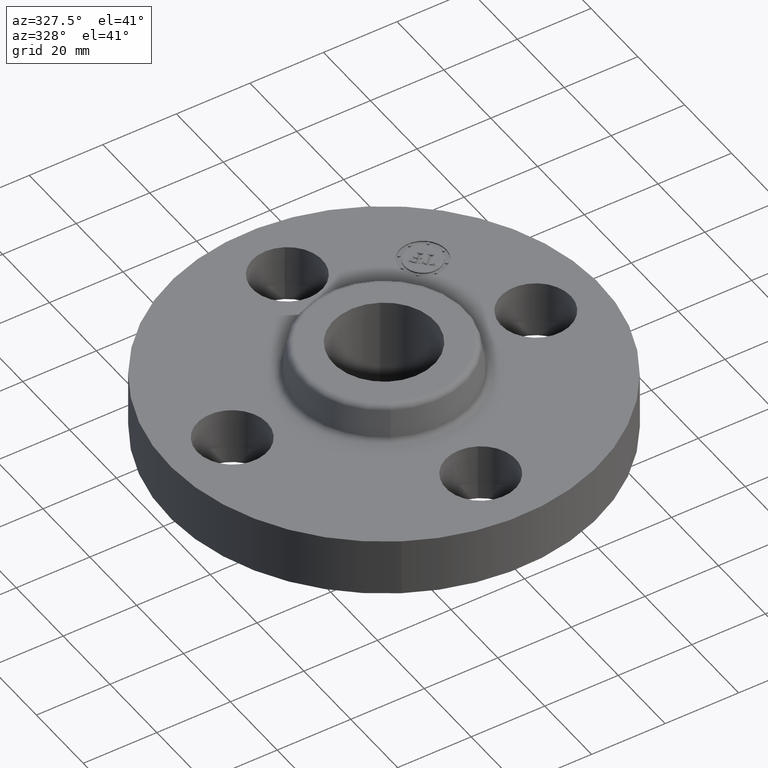
[diagram: clean part render]
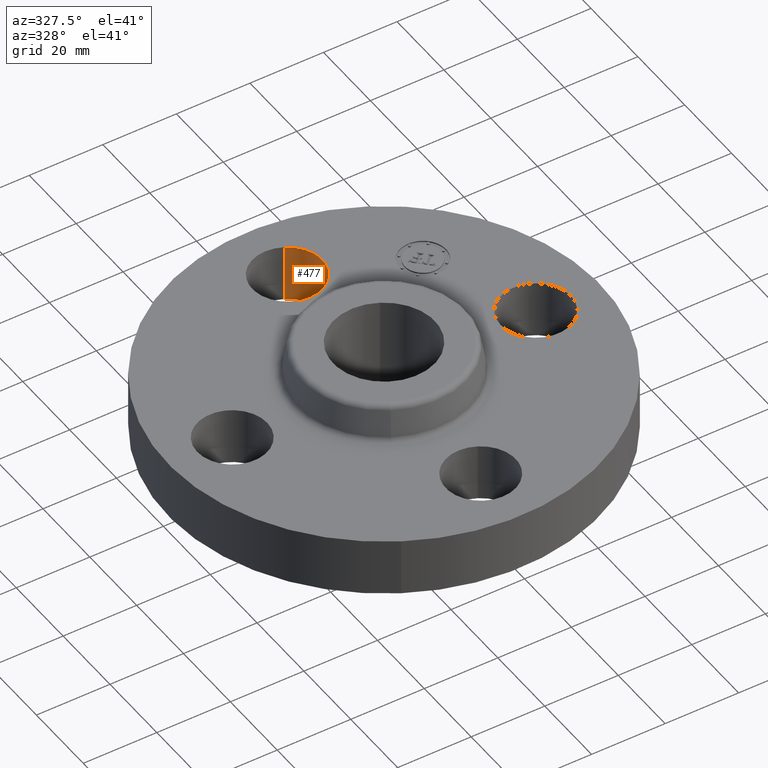
[diagram: same view with one face highlighted and labeled with its STEP entity id]
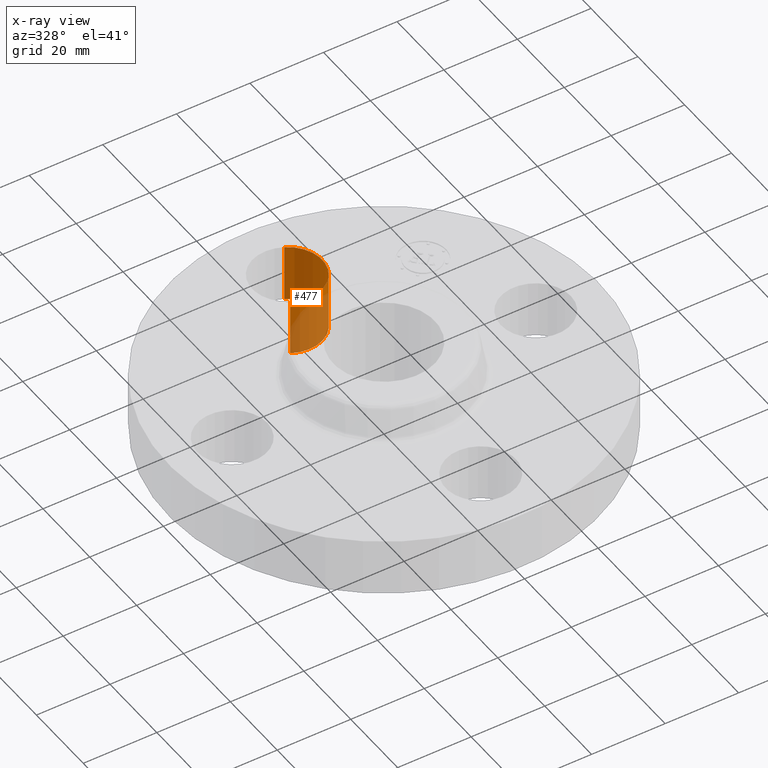
[diagram: x-ray of the same camera — body ghosted, the highlighted face saturated]
A machine part, auxiliary view. The second image highlights one B-rep face of the part: STEP entity #477.
The next image is the same camera in x-ray: the body ghosted, the highlighted face saturated — about 40% of this face is hidden behind the body in this view.
In plain terms, the highlighted cylindrical surface (partial cylindrical patch) has radius 9.525 mm, axis along (0, 0, -1).
Its self-contained STEP definition (entity closure, byte-faithful):
#427=AXIS2_PLACEMENT_3D('Circle Axis2P3D',#425,#426,$) ;
#438=AXIS2_PLACEMENT_3D('Cylinder Axis2P3D',#435,#436,#437) ;
#468=AXIS2_PLACEMENT_3D('Circle Axis2P3D',#466,#467,$) ;
#420=CARTESIAN_POINT('Vertex',(-0.179784576977,1.2959065393,0.)) ;
#422=CARTESIAN_POINT('Vertex',(0.179784576977,1.95409346072,0.)) ;
#425=CARTESIAN_POINT('Axis2P3D Location',(-2.44773580232E-016,1.62500000001,0.)) ;
#435=CARTESIAN_POINT('Axis2P3D Location',(-2.98507657293E-016,1.62500000001,0.616062992128)) ;
#440=CARTESIAN_POINT('Line Origine',(-0.179784576977,1.2959065393,0.310000000001)) ;
#444=CARTESIAN_POINT('Vertex',(-0.179784576977,1.2959065393,0.620000000002)) ;
#447=CARTESIAN_POINT('Line Origine',(0.179784576977,1.95409346072,0.310000000001)) ;
#451=CARTESIAN_POINT('Vertex',(0.179784576977,1.95409346072,0.620000000002)) ;
#466=CARTESIAN_POINT('Axis2P3D Location',(-2.98507657293E-016,1.62500000001,0.620000000002)) ;
#426=DIRECTION('Axis2P3D Direction',(0.,0.,-0.0393700787402)) ;
#436=DIRECTION('Axis2P3D Direction',(0.,0.,-0.0393700787402)) ;
#437=DIRECTION('Axis2P3D XDirection',(0.0188750212049,0.0345504945626,0.)) ;
#441=DIRECTION('Vector Direction',(0.,0.,-0.0393700787402)) ;
#448=DIRECTION('Vector Direction',(0.,0.,-0.0393700787402)) ;
#467=DIRECTION('Axis2P3D Direction',(0.,0.,-0.0393700787402)) ;
#442=VECTOR('Line Direction',#441,0.0393700787402) ;
#449=VECTOR('Line Direction',#448,0.0393700787402) ;
#472=ORIENTED_EDGE('',*,*,#453,.F.) ;
#473=ORIENTED_EDGE('',*,*,#429,.T.) ;
#474=ORIENTED_EDGE('',*,*,#446,.T.) ;
#475=ORIENTED_EDGE('',*,*,#470,.F.) ;
#477=ADVANCED_FACE('PartBody',(#476),#439,.F.) ;
#428=CIRCLE('generated circle',#427,0.375000000001) ;
#469=CIRCLE('generated circle',#468,0.375000000001) ;
#439=CYLINDRICAL_SURFACE('generated cylinder',#438,0.375000000001) ;
#429=EDGE_CURVE('',#423,#421,#428,.T.) ;
#446=EDGE_CURVE('',#421,#445,#443,.F.) ;
#453=EDGE_CURVE('',#423,#452,#450,.F.) ;
#470=EDGE_CURVE('',#452,#445,#469,.T.) ;
#471=EDGE_LOOP('',(#472,#473,#474,#475)) ;
#476=FACE_OUTER_BOUND('',#471,.T.) ;
#443=LINE('Line',#440,#442) ;
#450=LINE('Line',#447,#449) ;
#421=VERTEX_POINT('',#420) ;
#423=VERTEX_POINT('',#422) ;
#445=VERTEX_POINT('',#444) ;
#452=VERTEX_POINT('',#451) ;